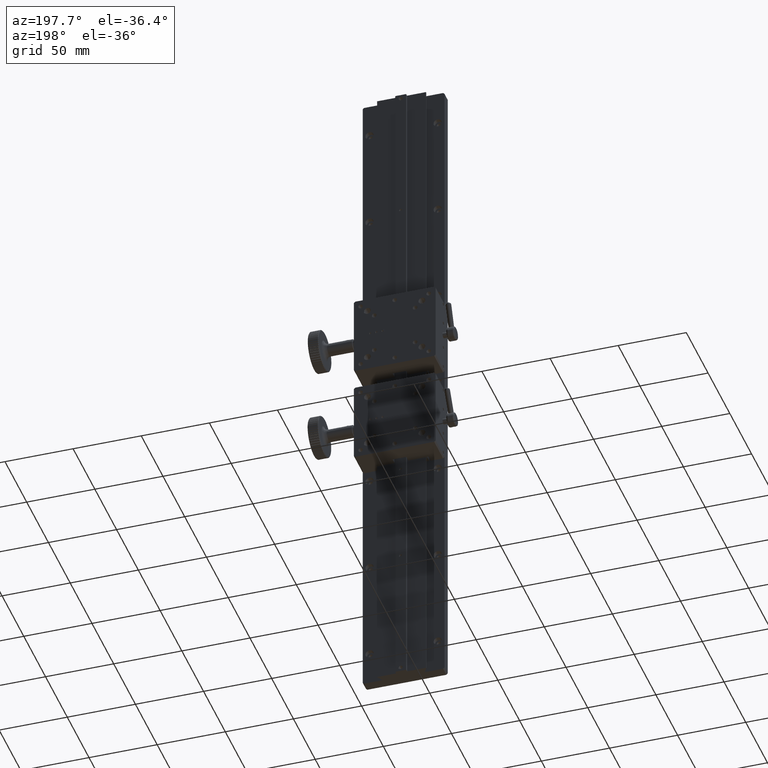
[diagram: clean part render]
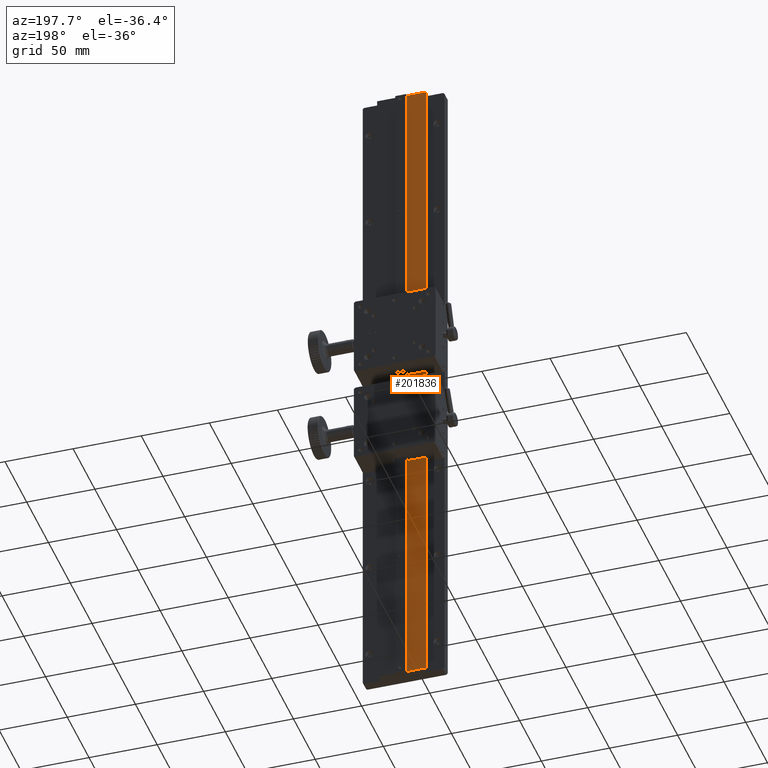
[diagram: same view with one face highlighted and labeled with its STEP entity id]
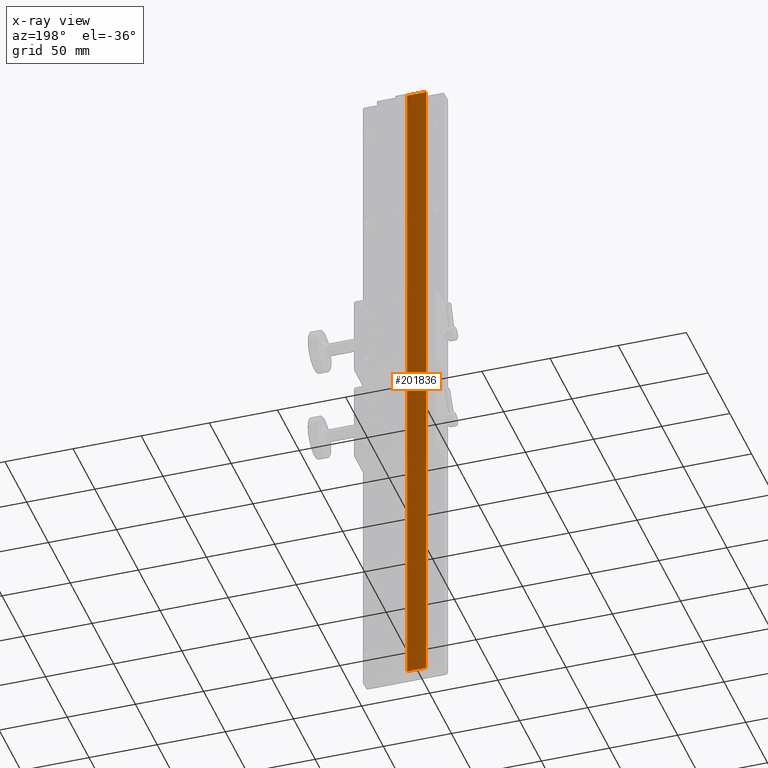
[diagram: x-ray of the same camera — body ghosted, the highlighted face saturated]
A machine part, auxiliary view. The second image highlights one B-rep face of the part: STEP entity #201836.
The next image is the same camera in x-ray: the body ghosted, the highlighted face saturated — about 0% of this face is hidden behind the body in this view.
In plain terms, the highlighted planar face has unit normal (0, -1, 0).
Its self-contained STEP definition (entity closure, byte-faithful):
#627 = VERTEX_POINT ( 'NONE', #19719 ) ;
#2350 = CARTESIAN_POINT ( 'NONE',  ( 60.45156960994744111, 69.30272800986766413, 513.8231807833473113 ) ) ;
#6736 = EDGE_LOOP ( 'NONE', ( #171370, #181390, #167315, #91721 ) ) ;
#9163 = CARTESIAN_POINT ( 'NONE',  ( 46.58802334475602436, 69.30272800986757886, 513.8231807833473113 ) ) ;
#16022 = CARTESIAN_POINT ( 'NONE',  ( 46.58802334475602436, 69.30272800986759307, 513.8231807833473113 ) ) ;
#16767 = DIRECTION ( 'NONE',  ( 1.000000000000000000, -0.000000000000000000, 0.000000000000000000 ) ) ;
#19719 = CARTESIAN_POINT ( 'NONE',  ( 60.45156960994744111, 69.30272800986763571, 513.8231807833473113 ) ) ;
#20163 = LINE ( 'NONE', #33505, #94386 ) ;
#22892 = EDGE_CURVE ( 'NONE', #627, #53319, #142503, .T. ) ;
#32447 = VECTOR ( 'NONE', #16767, 1000.000000000000000 ) ;
#33505 = CARTESIAN_POINT ( 'NONE',  ( 64.50156960994755195, 69.30272800986759307, 13.82318078334728284 ) ) ;
#50399 = EDGE_CURVE ( 'NONE', #96806, #53319, #20163, .T. ) ;
#53319 = VERTEX_POINT ( 'NONE', #198882 ) ;
#57113 = FACE_OUTER_BOUND ( 'NONE', #6736, .T. ) ;
#73470 = CARTESIAN_POINT ( 'NONE',  ( 46.28802334475611246, 69.30272800986757886, 513.8231807833473113 ) ) ;
#88799 = DIRECTION ( 'NONE',  ( 7.227918770390267180E-15, -1.000000000000000000, 0.000000000000000000 ) ) ;
#91721 = ORIENTED_EDGE ( 'NONE', *, *, #50399, .F. ) ;
#93806 = VECTOR ( 'NONE', #181042, 1000.000000000000000 ) ;
#94386 = VECTOR ( 'NONE', #112275, 1000.000000000000000 ) ;
#94519 = LINE ( 'NONE', #144590, #32447 ) ;
#96806 = VERTEX_POINT ( 'NONE', #155047 ) ;
#104277 = LINE ( 'NONE', #9163, #93806 ) ;
#106603 = AXIS2_PLACEMENT_3D ( 'NONE', #73470, #88799, #135866 ) ;
#107168 = PLANE ( 'NONE',  #106603 ) ;
#112275 = DIRECTION ( 'NONE',  ( 1.000000000000000000, -0.000000000000000000, 0.000000000000000000 ) ) ;
#135866 = DIRECTION ( 'NONE',  ( 1.000000000000000000, 7.227918770390267180E-15, 0.000000000000000000 ) ) ;
#137076 = EDGE_CURVE ( 'NONE', #161069, #627, #94519, .T. ) ;
#142503 = LINE ( 'NONE', #2350, #142863 ) ;
#142658 = EDGE_CURVE ( 'NONE', #161069, #96806, #104277, .T. ) ;
#142863 = VECTOR ( 'NONE', #144520, 1000.000000000000000 ) ;
#144520 = DIRECTION ( 'NONE',  ( -0.000000000000000000, -0.000000000000000000, -1.000000000000000000 ) ) ;
#144590 = CARTESIAN_POINT ( 'NONE',  ( 64.50156960994755195, 69.30272800986759307, 513.8231807833473113 ) ) ;
#155047 = CARTESIAN_POINT ( 'NONE',  ( 46.58802334475602436, 69.30272800986759307, 13.82318078334728995 ) ) ;
#161069 = VERTEX_POINT ( 'NONE', #16022 ) ;
#167315 = ORIENTED_EDGE ( 'NONE', *, *, #22892, .T. ) ;
#171370 = ORIENTED_EDGE ( 'NONE', *, *, #142658, .F. ) ;
#181042 = DIRECTION ( 'NONE',  ( 0.000000000000000000, -0.000000000000000000, -1.000000000000000000 ) ) ;
#181390 = ORIENTED_EDGE ( 'NONE', *, *, #137076, .T. ) ;
#198882 = CARTESIAN_POINT ( 'NONE',  ( 60.45156960994744111, 69.30272800986763571, 13.82318078334731126 ) ) ;
#201836 = ADVANCED_FACE ( 'NONE', ( #57113 ), #107168, .F. ) ;